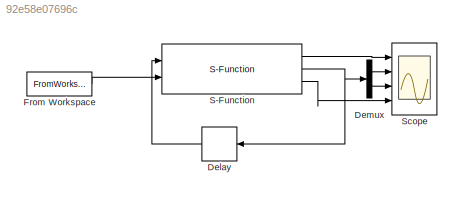
MODEL slx_92e58e07696c
KIND model
CONFIG AbsTol = auto
CONFIG FixedStep = 0.05
CONFIG InitFcn = loadvar
CONFIG MaxStep = auto
CONFIG MinStep = auto
CONFIG RelTol = 1e-3
CONFIG SampleTimeConstraint = Unconstrained
CONFIG Solver = FixedStepDiscrete
CONFIG SolverMode = SingleTasking
CONFIG SolverName = FixedStepDiscrete
CONFIG StartTime = 0.0
CONFIG StopTime = 30.0
BLOCK [Delay] Delay
  DelayLength = 1
  InitialCondition = x0
  InputPortMap = u0
  Ports = [1, 1]
BLOCK [Demux] Demux
  DisplayOption = bar
  Outputs = 2
  Ports = [1, 2]
BLOCK [FromWorkspace] From Workspace
  SampleTime = 0
  VariableName = reference
  ZeroCross = on
BLOCK [S-Function] S-Function
  EnableBusSupport = off
  FunctionName = engine_nmpc
  Ports = [2, 3]
  SFunctionDeploymentMode = off
BLOCK [Scope] Scope
  NumInputPorts = 4
  Ports = [4]
  ScopeSpecificationString = Simulink.scopes.TimeScopeBlockCfg('CurrentConfiguration', extmgr.ConfigurationSet(extmgr.Configuration('Core','General UI',true),extmgr.Configuration('Core','Source UI',true),extmgr.Configuration('Sources','WiredSimulink',true),extmgr.Configuration('Visuals','Time Domain',true,'SerializedDisplays',{struct('MinYLimReal','-2451.88811','MaxYLimReal','2066.99299','YLabelReal','','MinYLimMag','  0.0000...<+3435ch>
LINE Delay:1 -> S-Function:1
LINE Demux:1 -> Scope:2
LINE Demux:2 -> Scope:3
LINE From Workspace:1 -> S-Function:2
LINE S-Function:1 -> Scope:1
NET S-Function:2 -> Delay:1, Demux:1
LINE S-Function:3 -> Scope:4
note: NET lines group one-source signal fan-out (src -> all destinations, sorted); 1:1 wires keep LINE
